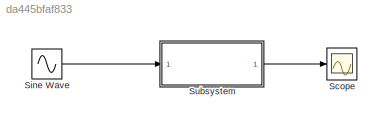
MODEL slx_da445bfaf833
KIND model
CONFIG AbsTol = auto
CONFIG EnableMultiTasking = off
CONFIG FixedStep = auto
CONFIG MaxStep = auto
CONFIG MinStep = auto
CONFIG RelTol = 1e-3
CONFIG SampleTimeConstraint = Unconstrained
CONFIG Solver = VariableStepAuto
CONFIG SolverName = VariableStepAuto
CONFIG StartTime = 0.0
CONFIG StopTime = 0.1
BLOCK [Scope] Scope
  Floating = off
  NumInputPorts = 1
  Ports = [1]
  ScopeSpecificationString = Simulink.scopes.TimeScopeBlockCfg('CurrentConfiguration', extmgr.ConfigurationSet(extmgr.Configuration('Core','General UI',true),extmgr.Configuration('Core','Source UI',true),extmgr.Configuration('Sources','WiredSimulink',true),extmgr.Configuration('Visuals','Time Domain',true,'SerializedDisplays',{struct('MinYLimReal','-0.07041','MaxYLimReal','1.0281','YLabelReal','','MinYLimMag','0.00000','MaxYL...<+1344ch>
BLOCK [Sin] Sine Wave
  Frequency = 2*pi*500
  Ports = [0, 1]
  SampleTime = 2e-6
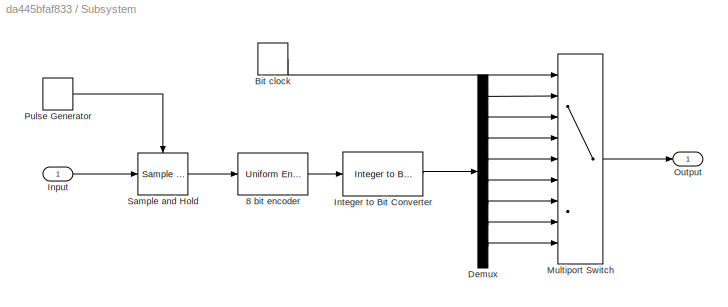
BLOCK [SubSystem] Subsystem
  Ports = [1, 1]
  RequestExecContextInheritance = off
BLOCK [Reference] Subsystem/8 bit encoder  REF=dspquant2/Uniform
Encoder
  Ports = [1, 1]
  SourceBlock = dspquant2/Uniform\nEncoder
  SourceProductBaseCode = DS
  SourceProductName = DSP System Toolbox
  SourceType = Uniform Encoder
BLOCK [DiscretePulseGenerator] Subsystem/Bit clock
  Period = 1/50e3
  Ports = [0, 1]
  PulseType = Time based
  PulseWidth = 50
BLOCK [Demux] Subsystem/Demux
  DisplayOption = bar
  Outputs = 8
  Ports = [1, 8]
BLOCK [Inport] Subsystem/Input
  IconDisplay = Port number
BLOCK [Reference] Subsystem/Integer to Bit Converter  REF=commutil2/Integer to Bit
Converter
  Ports = [1, 1]
  SourceBlock = commutil2/Integer to Bit\nConverter
  SourceProductBaseCode = CM
  SourceProductName = Communications System Toolbox
  SourceType = Integer to Bit Converter
BLOCK [MultiPortSwitch] Subsystem/Multiport Switch
  DiagnosticForDefault = Warning
  Inputs = 8
  Ports = [9, 1]
BLOCK [Outport] Subsystem/Output
  IconDisplay = Port number
BLOCK [DiscretePulseGenerator] Subsystem/Pulse Generator
  Period = 1/20e3
  Ports = [0, 1]
  PulseType = Time based
  PulseWidth = 10
BLOCK [Reference] Subsystem/Sample and Hold  REF=dspsigops/Sample
and Hold
  Ports = [1, 1, 0, 1]
  SourceBlock = dspsigops/Sample\nand Hold
  SourceProductBaseCode = DS
  SourceProductName = DSP System Toolbox
  SourceType = Sample and Hold
LINE Sine Wave:1 -> Subsystem:1
LINE Subsystem/8 bit encoder:1 -> Subsystem/Integer to Bit Converter:1
LINE Subsystem/Bit clock:1 -> Subsystem/Multiport Switch:1
LINE Subsystem/Demux:1 -> Subsystem/Multiport Switch:2
LINE Subsystem/Demux:2 -> Subsystem/Multiport Switch:3
LINE Subsystem/Demux:3 -> Subsystem/Multiport Switch:4
LINE Subsystem/Demux:4 -> Subsystem/Multiport Switch:5
LINE Subsystem/Demux:5 -> Subsystem/Multiport Switch:6
LINE Subsystem/Demux:6 -> Subsystem/Multiport Switch:7
LINE Subsystem/Demux:7 -> Subsystem/Multiport Switch:8
LINE Subsystem/Demux:8 -> Subsystem/Multiport Switch:9
LINE Subsystem/Input:1 -> Subsystem/Sample and Hold:1
LINE Subsystem/Integer to Bit Converter:1 -> Subsystem/Demux:1
LINE Subsystem/Multiport Switch:1 -> Subsystem/Output:1
LINE Subsystem/Pulse Generator:1 -> Subsystem/Sample and Hold:trigger
LINE Subsystem/Sample and Hold:1 -> Subsystem/8 bit encoder:1
LINE Subsystem:1 -> Scope:1
